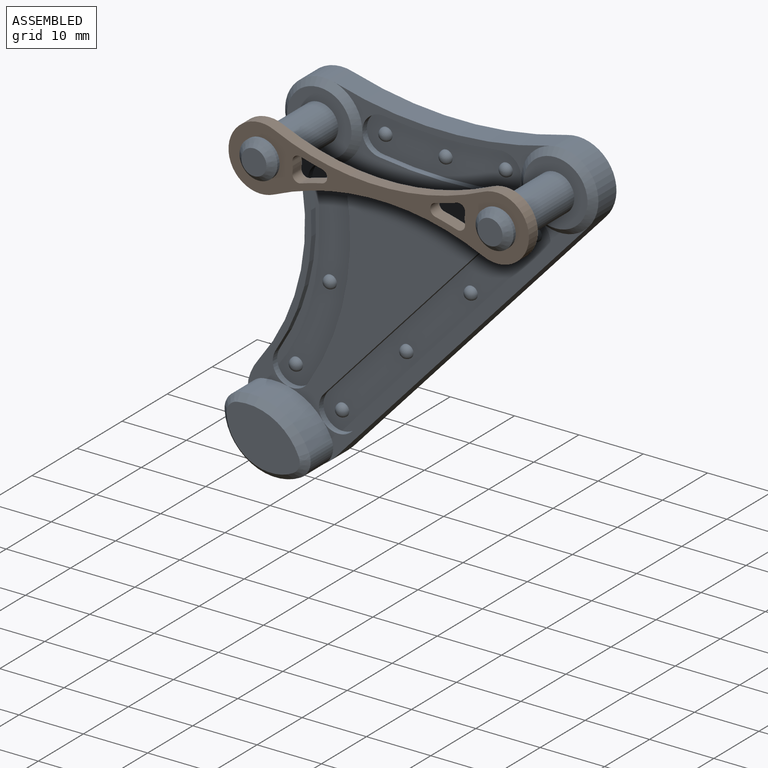
[diagram: assembled view]
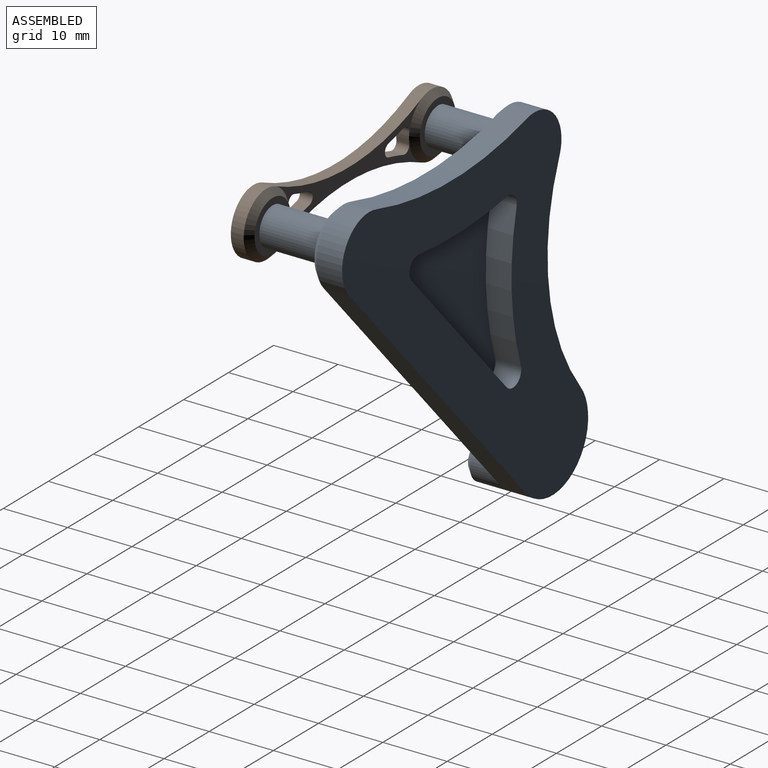
[diagram: assembled view, second angle]
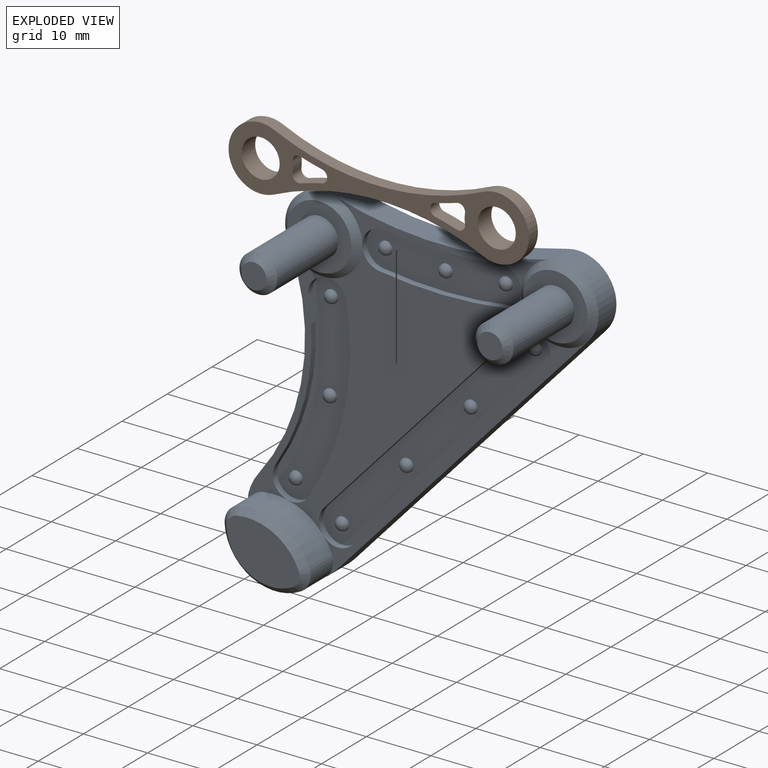
[diagram: exploded view]
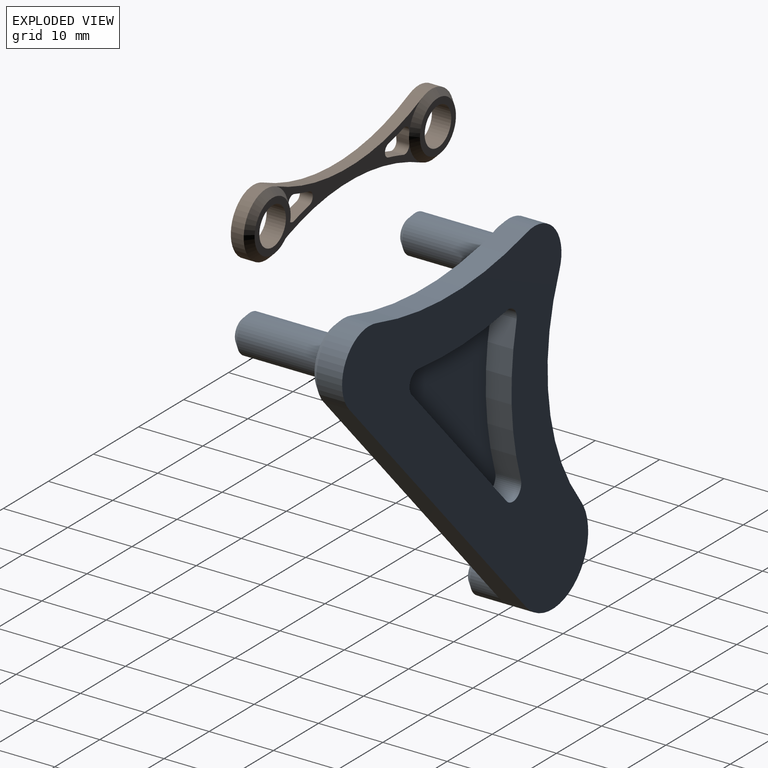
[diagram: exploded view, second angle]
ASSEMBLY  parts=2 mates=3
PART A: 62 faces, bbox 54.6x19.5x55.3 mm
  f0: plane 42.37x39.32mm, normal (0,-1,0), area 497.7mm2, adj f1,f2,f3,f4,f5,f6,f7,f8
  f1: bspline ~11.76x11.53mm, area 31.4mm2, adj f0,f13,f14,f15,f16
  f2: cylinder r=3mm len=5.96mm, axis (0,-1,0), area 9.4mm2, adj f0,f3,f16,f17,f18
  f3: cylinder r=40.9mm len=29.08mm, axis (0,-1,0), area 30.4mm2, adj f0,f2,f4,f18
  f4: cylinder r=3mm len=5.52mm, axis (0,-1,0), area 9.4mm2, adj f0,f3,f16,f17,f18
  f5: cylinder r=9.77mm len=10.65mm, axis (0,1,0), area 65.3mm2, adj f0,f16,f19,f20,f21,f22
  f6: cylinder r=3mm len=5.21mm, axis (0,-1,0), area 9.4mm2, adj f0,f7,f22,f23,f24
  f7: plane 32.63x29.98mm, normal (0.74,0,-0.68), area 44.3mm2, adj f0,f6,f8,f23
  f8: cylinder r=3mm len=5.21mm, axis (0,-1,0), area 9.4mm2, adj f0,f7,f22,f23,f24
  f9: cone r=6mm half-angle=45deg, axis (0,1,0), area 48.9mm2, adj f0,f13,f22,f25,f26
  f10: cylinder r=3mm len=5.97mm, axis (0,-1,0), area 9.4mm2, adj f0,f11,f13,f27,f28
  f11: cylinder r=67mm len=19.58mm, axis (0,-1,0), area 19.6mm2, adj f0,f10,f12,f28
  f12: cylinder r=3mm len=5.97mm, axis (0,-1,0), area 9.4mm2, adj f0,f11,f13,f27,f28
  f13: plane 33.37x5.71mm, normal (0,-1,0), area 38.7mm2, adj f1,f9,f10,f12,f27,f29
  f14: cone r=5mm half-angle=45deg, axis (0,1,0), area 17.5mm2, adj f1,f15,f30
  f15: plane 10.07x10.06mm, normal (0,-1,0), area 51.2mm2, adj f1,f14,f31
  f16: plane 39.6x12.29mm, normal (0,-1,0), area 48.7mm2, adj f1,f2,f4,f5,f17,f19,f32,f33
  f17: cylinder r=34.9mm len=24.81mm, axis (0,-1,0), area 25.9mm2, adj f2,f4,f16,f18
  f18: plane 32.94x12.03mm, normal (0,-1,0), area 187.7mm2, adj f2,f3,f4,f17,f34,f35,f36
  f19: cylinder r=3mm len=5mm, axis (0,1,0), area 22mm2, adj f5,f16,f33,f37
  f20: cone r=8.77mm half-angle=45deg, axis (0,1,0), area 17.5mm2, adj f5,f37,f38,f39
  f21: cylinder r=3mm len=5mm, axis (0,1,0), area 22mm2, adj f5,f22,f33,f38
  f22: plane 44.25x41.21mm, normal (0,-1,0), area 64.8mm2, adj f5,f6,f8,f9,f21,f24,f33,f40
  f23: plane 38.63x35.98mm, normal (0,-1,0), area 281.6mm2, adj f6,f7,f8,f24,f41,f42,f43,f44
  f24: plane 32.63x29.98mm, normal (-0.74,0,0.68), area 44.3mm2, adj f6,f8,f22,f23
  f25: plane 10x10mm, normal (0,-1,0), area 51.2mm2, adj f9,f45
  f26: cylinder r=6mm len=10.06mm, axis (0,1,0), area 62.3mm2, adj f9,f29,f40,f46
  f27: cylinder r=61mm len=17.82mm, axis (0,-1,0), area 17.9mm2, adj f10,f12,f13,f28
  f28: plane 24.7x6.69mm, normal (0,-1,0), area 131.5mm2, adj f10,f11,f12,f27,f47,f48,f49
  f29: cylinder r=60mm len=33.36mm, axis (0,1,0), area 135.2mm2, adj f13,f26,f30,f46
  f30: cylinder r=6mm len=8.32mm, axis (0,1,0), area 54mm2, adj f14,f29,f32,f46
  f31: cylinder r=2.95mm len=13.5mm, axis (0,1,0), area 250.2mm2, adj f15,f50
  f32: cylinder r=33.9mm len=34.13mm, axis (0,1,0), area 144.5mm2, adj f16,f30,f33,f46
  f33: cylinder r=7.96mm len=13.81mm, axis (0,1,0), area 177.9mm2, adj f16,f19,f21,f22,f32,f40,f46,f51
  f34: sphere r=1mm, area 6.3mm2, adj f18
  f35: sphere r=1mm, area 6.3mm2, adj f18
  f36: sphere r=1mm, area 6.3mm2, adj f18
  f37: cone r=2mm half-angle=45deg, axis (0,1,0), area 5.2mm2, adj f19,f20,f39,f51
  f38: cone r=2mm half-angle=45deg, axis (0,1,0), area 5.2mm2, adj f20,f21,f39,f51
  f39: plane 11.38x8.72mm, normal (0,-1,0), area 72.7mm2, adj f20,f37,f38,f51
  f40: plane 42.7x39.23mm, normal (0.74,0,-0.68), area 232mm2, adj f22,f26,f33,f46
  f41: sphere r=1mm, area 6.3mm2, adj f23
  f42: sphere r=1mm, area 6.3mm2, adj f23
  f43: sphere r=1mm, area 6.3mm2, adj f23
  f44: sphere r=1mm, area 6.3mm2, adj f23
  f45: cylinder r=2.95mm len=13.5mm, axis (0,1,0), area 250.2mm2, adj f25,f52
  f46: plane 55.34x54.63mm, normal (0,1,0), area 1261.6mm2, adj f26,f29,f30,f32,f33,f40,f53,f54
  f47: sphere r=1mm, area 6.3mm2, adj f28
  f48: sphere r=1mm, area 6.3mm2, adj f28
  f49: sphere r=1mm, area 6.3mm2, adj f28
  f50: cone r=1.95mm half-angle=45deg, axis (0,1,0), area 21.8mm2, adj f31,f59
  f51: cone r=6.96mm half-angle=45deg, axis (0,1,0), area 21.3mm2, adj f33,f37,f38,f39
  f52: cone r=1.95mm half-angle=45deg, axis (0,1,0), area 21.8mm2, adj f45,f60
  f53: cylinder r=41.9mm len=22.68mm, axis (0,-1,0), area 91.9mm2, adj f46,f54,f58,f61
  f54: cylinder r=1.86mm len=4mm, axis (0,-1,0), area 20.2mm2, adj f46,f53,f55,f61
  f55: plane 22.95x21.09mm, normal (-0.74,0,0.68), area 124.7mm2, adj f46,f54,f56,f61
  f56: cylinder r=1.86mm len=4mm, axis (0,-1,0), area 18.1mm2, adj f46,f55,f57,f61
  f57: cylinder r=68mm len=19.56mm, axis (0,-1,0), area 78.6mm2, adj f46,f56,f58,f61
  f58: cylinder r=1.86mm len=4mm, axis (0,-1,0), area 14.8mm2, adj f46,f53,f57,f61
  f59: plane 3.9x3.9mm, normal (0,-1,0), area 11.9mm2, adj f50
  f60: plane 3.9x3.9mm, normal (0,-1,0), area 11.9mm2, adj f52
  f61: plane 27.42x24.82mm, normal (0,1,0), area 354.1mm2, adj f53,f54,f55,f56,f57,f58
PART B: 25 faces, bbox 46.7x3x10 mm
  f0: plane 32.55x9.1mm, normal (0,1,0), area 72.5mm2, adj f1,f3,f10,f12,f13,f14,f15,f16
  f1: cylinder r=39.09mm len=32.54mm, axis (0,1,0), area 67.1mm2, adj f0,f2,f5,f7
  f2: cylinder r=5mm len=10mm, axis (0,1,0), area 40mm2, adj f1,f3,f7,f12
  f3: cylinder r=39.09mm len=32.54mm, axis (0,1,0), area 67.1mm2, adj f0,f2,f5,f7
  f4: cylinder r=2.95mm len=5.9mm, axis (0,1,0), area 55.6mm2, adj f7,f9
  f5: cylinder r=5mm len=10mm, axis (0,1,0), area 40mm2, adj f1,f3,f7,f11
  f6: cylinder r=2.95mm len=5.9mm, axis (0,1,0), area 55.6mm2, adj f7,f8
  f7: plane 46.7x10mm, normal (0,-1,0), area 174.9mm2, adj f1,f2,f3,f4,f5,f6,f13,f14
  f8: plane 8x8mm, normal (0,1,0), area 22.9mm2, adj f6,f12
  f9: plane 8.01x8.01mm, normal (0,1,0), area 22.9mm2, adj f4,f10,f11
  f10: bspline ~9.09x3.33mm, area 14.5mm2, adj f0,f9,f11,f24
  f11: cone r=4mm half-angle=45deg, axis (0,-1,0), area 25.5mm2, adj f5,f9,f10
  f12: cone r=5mm half-angle=45deg, axis (0,-1,0), area 40mm2, adj f0,f2,f8,f18
  f13: cylinder r=40.09mm len=3.33mm, axis (0,-1,0), area 6.9mm2, adj f0,f7,f14,f17
  f14: cylinder r=1mm len=2mm, axis (0,-1,0), area 5.4mm2, adj f0,f7,f13,f15
  f15: cylinder r=40.09mm len=3.33mm, axis (0,-1,0), area 6.9mm2, adj f0,f7,f14,f16
  f16: cylinder r=1mm len=2mm, axis (0,-1,0), area 4.1mm2, adj f0,f7,f15,f18
  f17: cylinder r=1mm len=2mm, axis (0,-1,0), area 4.1mm2, adj f0,f7,f13,f18
  f18: cylinder r=5mm len=2mm, axis (0,-1,0), area 3.1mm2, adj f7,f12,f16,f17
  f19: cylinder r=1mm len=2mm, axis (0,-1,0), area 5.4mm2, adj f0,f7,f20,f23
  f20: cylinder r=40.09mm len=3.33mm, axis (0,-1,0), area 6.9mm2, adj f0,f7,f19,f21
  f21: cylinder r=1mm len=2mm, axis (0,-1,0), area 4.1mm2, adj f0,f7,f20,f24
  f22: cylinder r=1mm len=2mm, axis (0,-1,0), area 4.1mm2, adj f0,f7,f23,f24
  f23: cylinder r=40.09mm len=3.33mm, axis (0,-1,0), area 6.9mm2, adj f0,f7,f19,f22
  f24: cylinder r=5mm len=2mm, axis (0,-1,0), area 3.1mm2, adj f7,f10,f21,f22
PLACE A t=(-29.15,-15.84,-2.55)mm fixed
PLACE B t=(7.55,-30.84,-2.55)mm
MATE planar A.f15 <-> B.f18  axis (0,-1,0) through (-27.76,-18.84,2.26)mm
MATE cylindrical B.f4 <-> A.f45  axis (0,-1,0) through (7.55,-31.84,-2.55)mm
MATE cylindrical B.f6 <-> A.f31  axis (0,1,0) through (-29.15,-31.84,-2.55)mm
